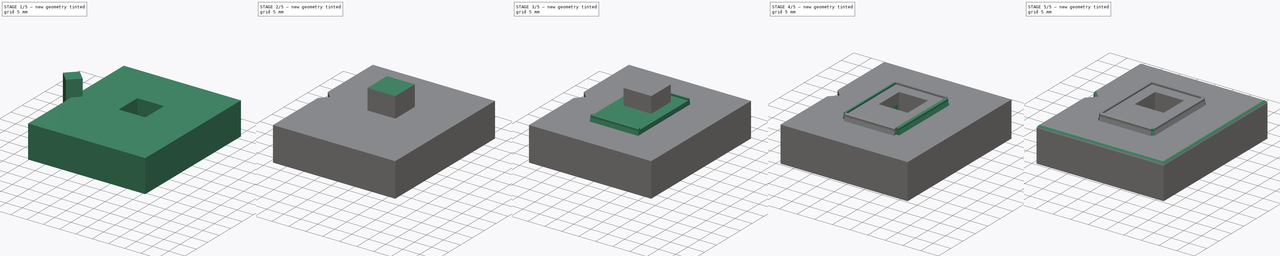
[diagram: build sequence overview — one tinted view per stage of 5, left to right]
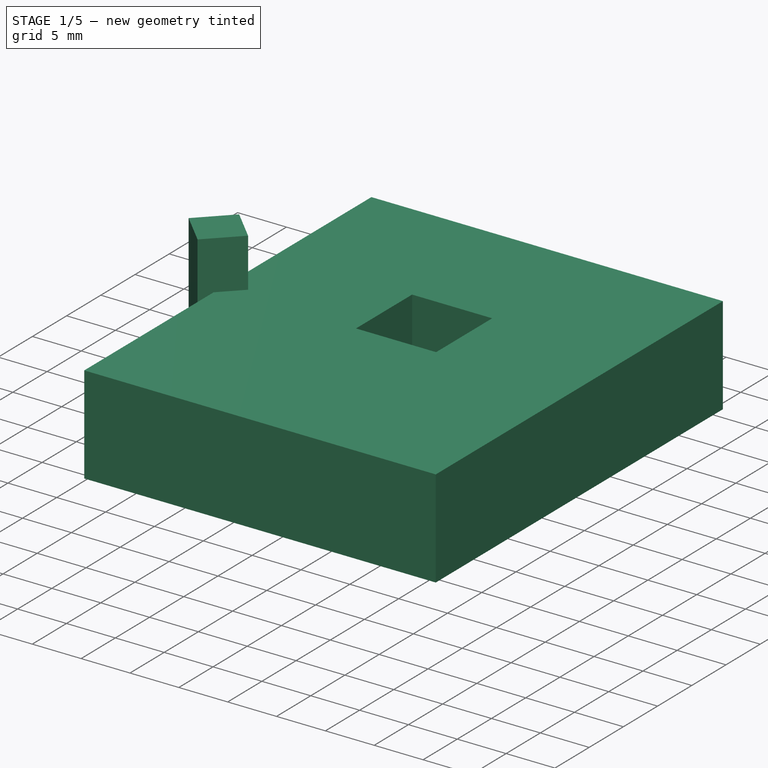
[diagram: stage 1 of 5 — iso view after this stage's code; geometry added in this stage tinted green]
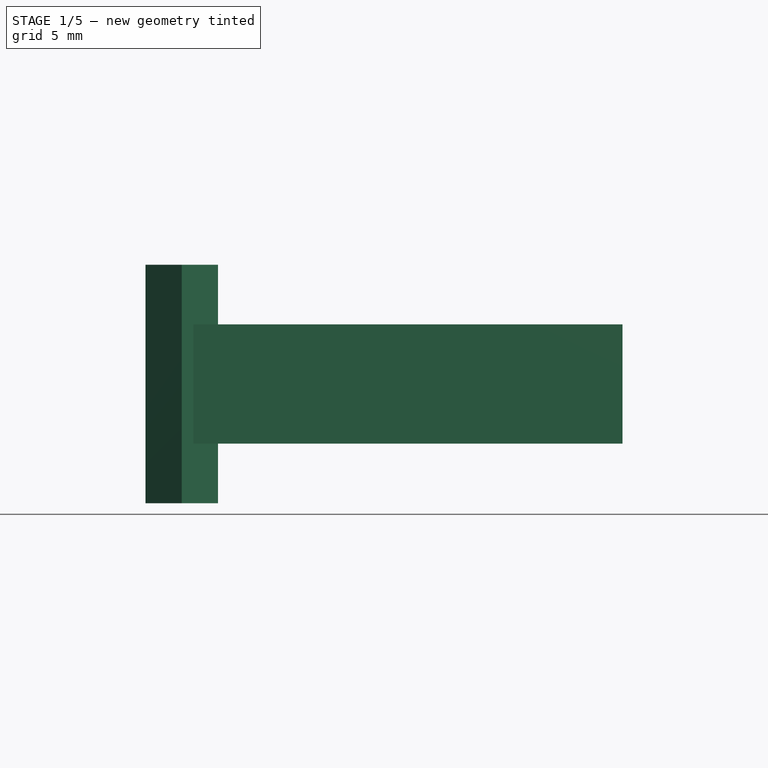
[diagram: stage 1 of 5 — front view after this stage's code; geometry added in this stage tinted green]
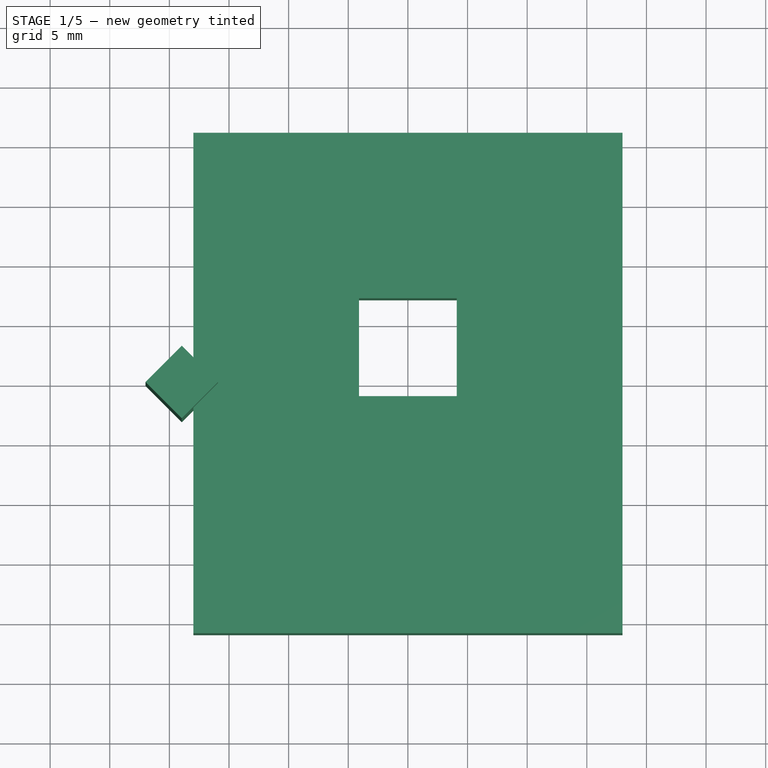
[diagram: stage 1 of 5 — top view after this stage's code; geometry added in this stage tinted green]
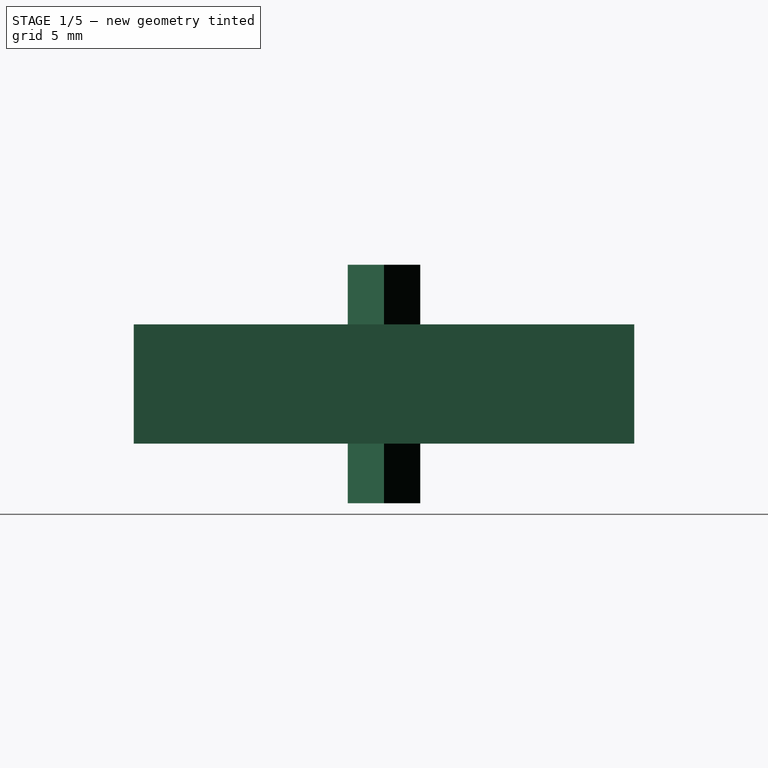
[diagram: stage 1 of 5 — right view after this stage's code; geometry added in this stage tinted green]
FCSTD DOCUMENT  (FreeCAD 1.0R39319 (Git))
Label: Xbox_OG_v1.6_RAM_Pin_Folder_Tool_Base_v3.0
License: All rights reserved
LicenseURL: https://en.wikipedia.org/wiki/All_rights_reserved
objects: Sketcher::SketchObject×7, PartDesign::Body×7, Part::Cut×5, Part::Box×4, PartDesign::Plane×4, PartDesign::Revolution×4, PartDesign::Pad×3, Part::Cylinder×1, Part::Feature×1, Part::MultiFuse×1, Part::Fillet×1
note: 59 computed .brp shape members not serialized (recipe doc carries the construction recipe); baked Part::Feature solids carry a one-line shape summary decoded from their .brp

FEATURE [PartDesign::Body] Body001  label="Length"
  AllowCompound = false
  Group = -> [Sketch001,Pad001]
  Origin = -> Origin001
  Placement = pos=(0,0,0) rot=(0,0,1;1.5708rad)
  Tip = -> Pad001
FEATURE [Sketcher::SketchObject] Sketch002
  ArcFitTolerance = 1e-06
  AttachmentSupport = -> [XZ_Plane002]
  FullyConstrained = true
  MakeInternals = false
  MapMode = 5
  Placement = pos=(0,0,0) rot=(1,0,0;1.5708rad)
  sketch-geometry (5):
    g0: LineSegment StartX=-17.99 StartY=10 StartZ=0 EndX=17.99 EndY=10 EndZ=0
    g1: LineSegment StartX=17.99 StartY=10 StartZ=0 EndX=17.99 EndY=0 EndZ=0
    g2: LineSegment StartX=17.99 StartY=0 StartZ=0 EndX=0 EndY=0 EndZ=0
    g3: LineSegment StartX=-17.99 StartY=10 StartZ=0 EndX=-17.99 EndY=0 EndZ=0
    g4: LineSegment StartX=-17.99 StartY=0 StartZ=0 EndX=0 EndY=0 EndZ=0
  constraints (12):
    c: Coincident(g1,g0)
    c: Parallel(g1,g-2)
    c: Horizontal(g1,g-1)
    c: Coincident(g2,g1)
    c: Coincident(g2,g-1)
    c: DistanceY(g1,g1) = 10
    c: Symmetric(g1,g3,g-2)
    c: Symmetric(g1,g3,g-2)
    c: Symmetric(g2,g4,g-2)
    c: Coincident(g2,g4)
    c: DistanceX(g2,g2) = 17.99
    c: Coincident(g0,g3)
FEATURE [PartDesign::Pad] Pad002
  Direction = (0,-1,2e-16)
  Length = 41.9747
  Length2 = 10
  Midplane = true
  Placement = pos=(0,0,0) rot=(1,0,0;1.5708rad)
  Profile = -> Sketch002
  ReferenceAxis = -> Sketch002 [N_Axis]
  Refine = true
  Suppressed = false
  Type = 0
FEATURE [Part::Box] Box001  label="Notch"
  AttacherType = Attacher::AttachEngine3D
  Height = 20
  Length = 4.3
  Placement = pos=(-22,0,-5) rot=(0,0,-1;0.785398rad)
  Width = 4.3
FEATURE [Part::Box] Box003  label="Center_Hole002"
  AttacherType = Attacher::AttachEngine3D
  Height = 20
  Length = 8.2
  Placement = pos=(-4.1,-1.1,-4) rot=(0,0,1;0rad)
  Width = 8.2
FEATURE [Part::Cut] Cut002
  Base = -> Body002
  Refine = true
  Tool = -> Box003
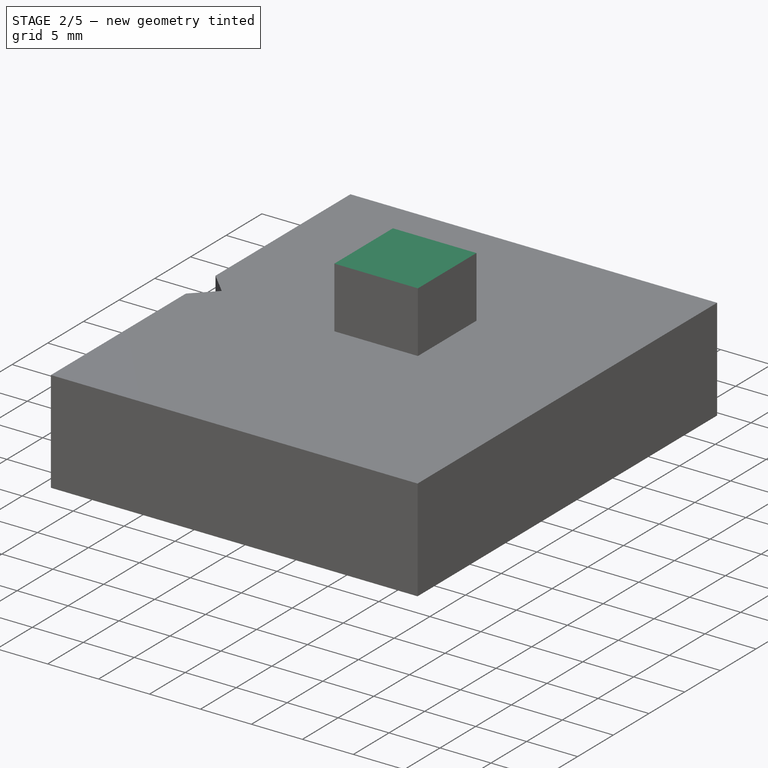
[diagram: stage 2 of 5 — iso view after this stage's code; geometry added in this stage tinted green]
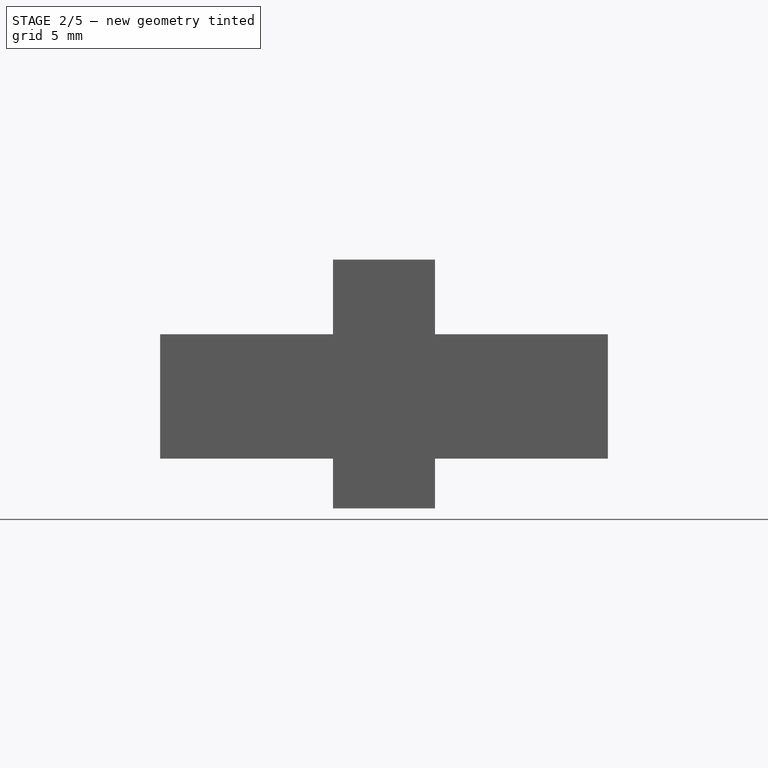
[diagram: stage 2 of 5 — front view after this stage's code; geometry added in this stage tinted green]
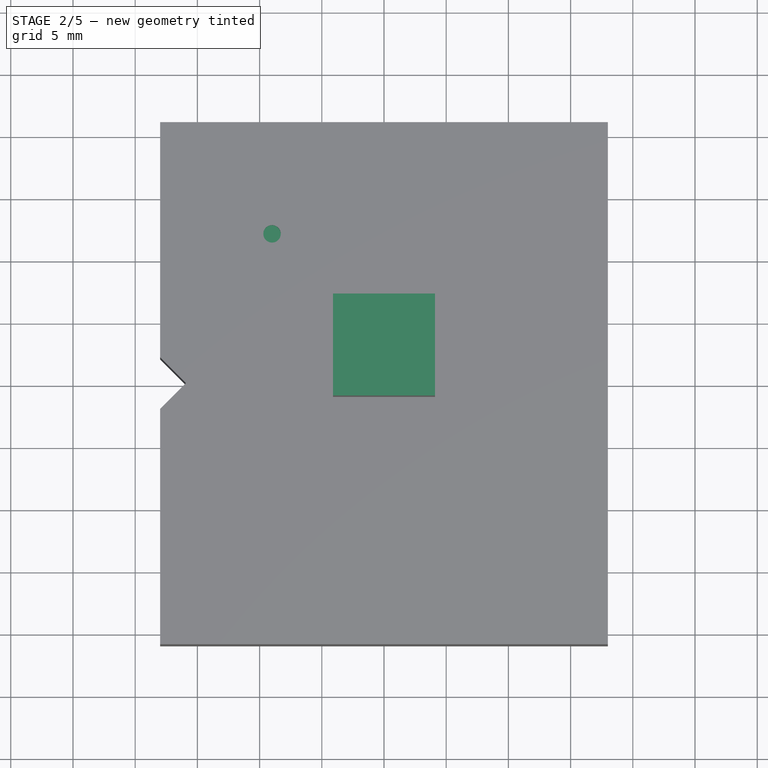
[diagram: stage 2 of 5 — top view after this stage's code; geometry added in this stage tinted green]
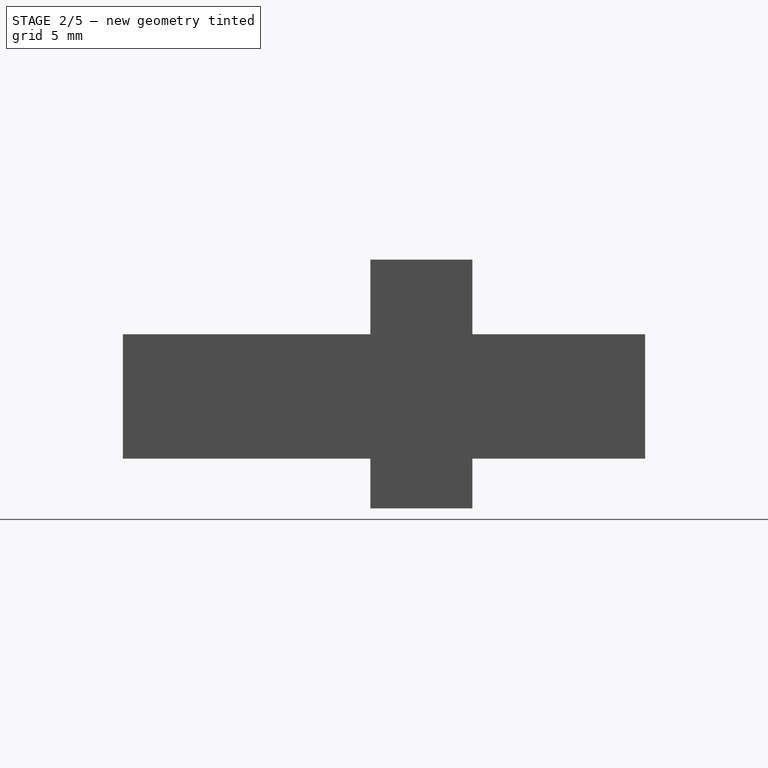
[diagram: stage 2 of 5 — right view after this stage's code; geometry added in this stage tinted green]
FEATURE [PartDesign::Body] Body002  label="Base"
  AllowCompound = false
  Group = -> [Sketch002,Pad002]
  Origin = -> Origin002
  Tip = -> Pad002
FEATURE [Part::Cylinder] Cylinder
  Angle = 360
  AttacherType = Attacher::AttachEngine3D
  FirstAngle = 0
  Height = 2
  Placement = pos=(-9,12,9) rot=(0,0,1;0rad)
  Radius = 0.7
  SecondAngle = 0
FEATURE [Part::Box] Box002  label="Center_Hole001"
  AttacherType = Attacher::AttachEngine3D
  Height = 20
  Length = 8.2
  Placement = pos=(-4.1,-1.1,-4) rot=(0,0,1;0rad)
  Width = 8.2
FEATURE [Part::Cut] Cut003
  Base = -> Cut002
  Refine = true
  Tool = -> Box001
FEATURE [Part::Cut] Cut004
  Base = -> Cut003
  Refine = true
  Tool = -> Cylinder
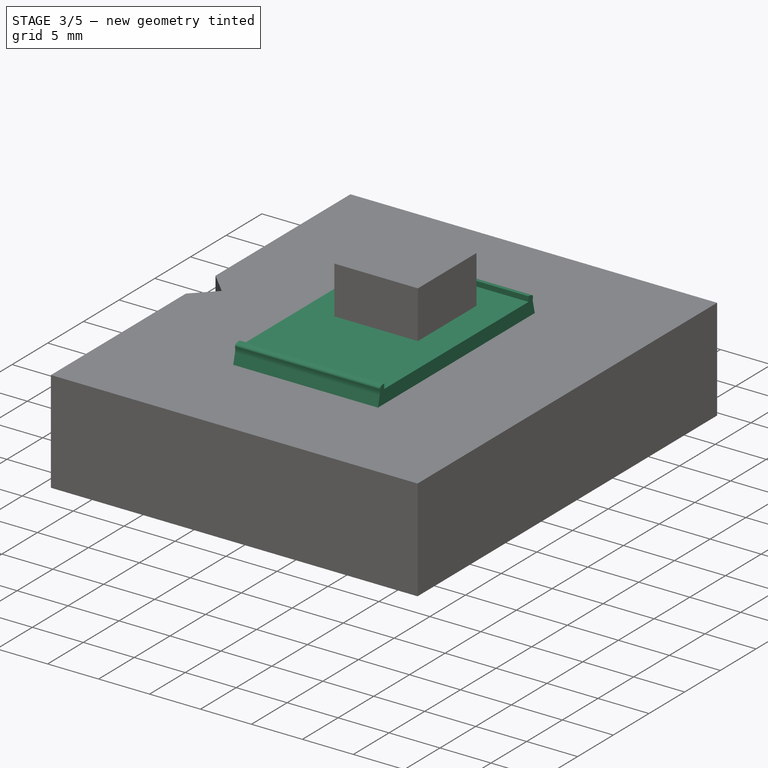
[diagram: stage 3 of 5 — iso view after this stage's code; geometry added in this stage tinted green]
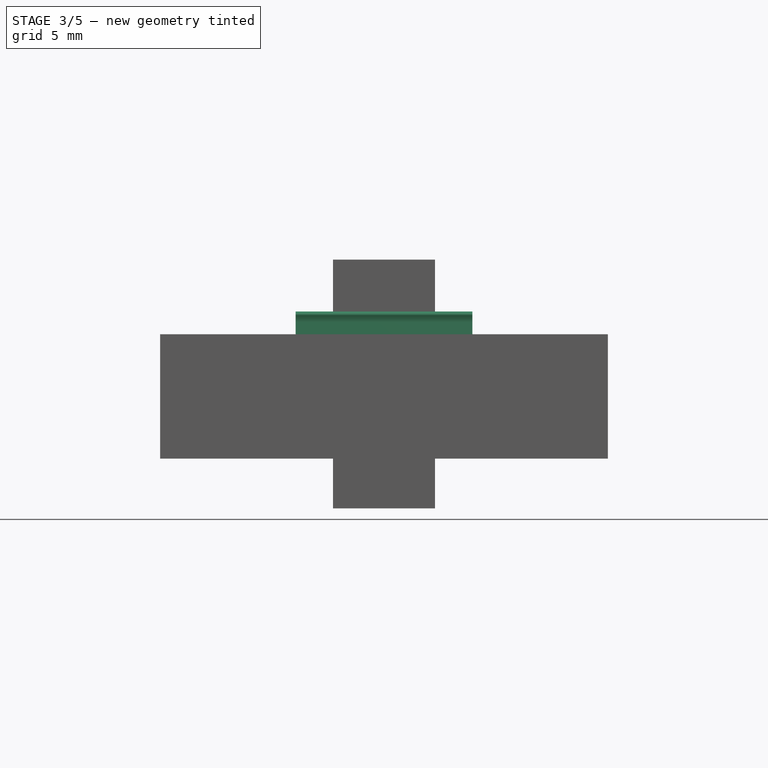
[diagram: stage 3 of 5 — front view after this stage's code; geometry added in this stage tinted green]
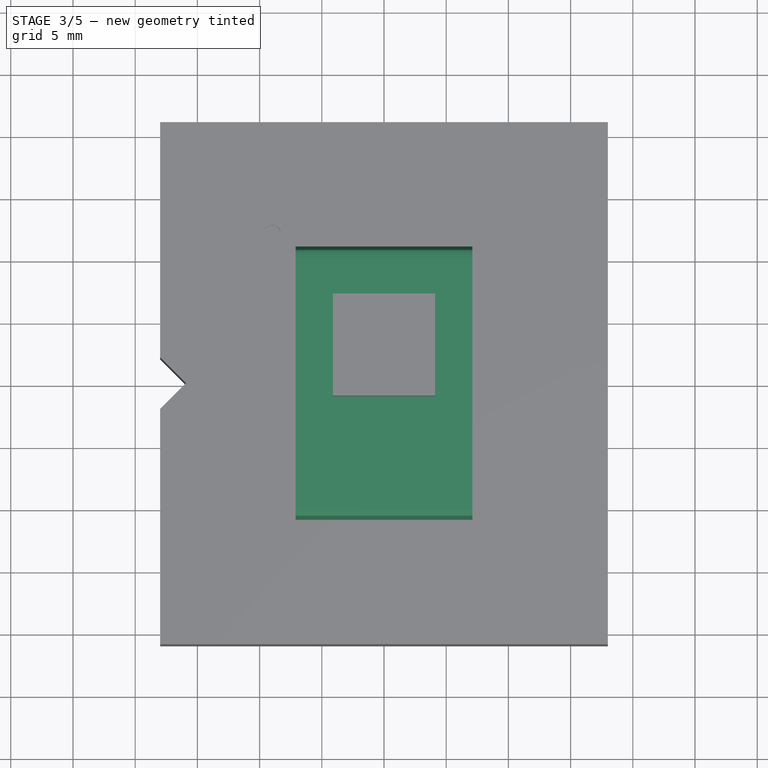
[diagram: stage 3 of 5 — top view after this stage's code; geometry added in this stage tinted green]
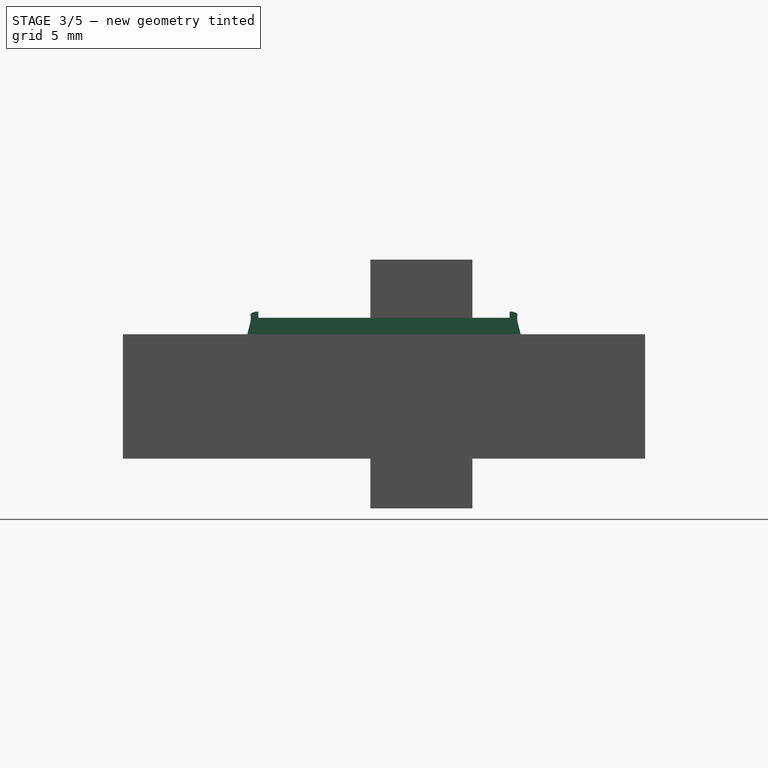
[diagram: stage 3 of 5 — right view after this stage's code; geometry added in this stage tinted green]
FEATURE [PartDesign::Body] Body  label="Width"
  AllowCompound = false
  Group = -> [Sketch,Pad]
  Origin = -> Origin
  Tip = -> Pad
FEATURE [Sketcher::SketchObject] Sketch001
  ArcFitTolerance = 1e-06
  AttachmentSupport = -> [XZ_Plane001]
  FullyConstrained = true
  MakeInternals = false
  MapMode = 5
  Placement = pos=(0,0,0) rot=(1,0,0;1.5708rad)
  sketch-geometry (16):
    g0: LineSegment StartX=0 StartY=11.3231 StartZ=0 EndX=10.1 EndY=11.3231 EndZ=0
    g1: LineSegment StartX=10.1 StartY=11.3231 StartZ=0 EndX=10.1 EndY=11.8231 EndZ=0
    g2: ArcOfCircle CenterX=10.1 CenterY=10.4381 CenterZ=0 NormalX=0 NormalY=0 NormalZ=1 AngleXU=0 Radius=1.385 StartAngle=1.20428 EndAngle=1.5708
    g3: ArcOfCircle CenterX=10.5193 CenterY=11.5304 CenterZ=0 NormalX=0 NormalY=0 NormalZ=1 AngleXU=0 Radius=0.215 StartAngle=-4.4e-15 EndAngle=1.20428
    g4: LineSegment StartX=10.7455 StartY=10.9703 StartZ=0 EndX=10.9873 EndY=10 EndZ=0
    g5: LineSegment StartX=10.9873 StartY=10 StartZ=0 EndX=10.9873 EndY=0 EndZ=0
    g6: LineSegment StartX=10.9873 StartY=0 StartZ=0 EndX=0 EndY=0 EndZ=0
    g7: ArcOfCircle CenterX=11.9678 CenterY=11.2749 CenterZ=0 NormalX=0 NormalY=0 NormalZ=1 AngleXU=0 Radius=1.25971 StartAngle=2.93739 EndAngle=3.3858
    g8: LineSegment StartX=0 StartY=11.3231 StartZ=0 EndX=-10.1 EndY=11.3231 EndZ=0
    g9: LineSegment StartX=-10.1 StartY=11.3231 StartZ=0 EndX=-10.1 EndY=11.8231 EndZ=0
    g10: ArcOfCircle CenterX=-10.1 CenterY=10.4381 CenterZ=0 NormalX=0 NormalY=0 NormalZ=1 AngleXU=0 Radius=1.385 StartAngle=1.5708 EndAngle=1.93732
    g11: ArcOfCircle CenterX=-10.5193 CenterY=11.5304 CenterZ=0 NormalX=0 NormalY=0 NormalZ=1 AngleXU=0 Radius=0.215 StartAngle=1.93732 EndAngle=3.14159
    g12: LineSegment StartX=-10.7455 StartY=10.9703 StartZ=0 EndX=-10.9873 EndY=10 EndZ=0
    g13: LineSegment StartX=-10.9873 StartY=10 StartZ=0 EndX=-10.9873 EndY=0 EndZ=0
    g14: LineSegment StartX=-10.9873 StartY=0 StartZ=0 EndX=0 EndY=0 EndZ=0
    g15: ArcOfCircle CenterX=-11.9678 CenterY=11.2749 CenterZ=0 NormalX=0 NormalY=0 NormalZ=1 AngleXU=0 Radius=1.25971 StartAngle=6.03897 EndAngle=6.48738
  constraints (44):
    c: Horizontal(g0)
    c: DistanceX(g0,g0) = 10.1
    c: DistanceY(g0,g1) = 0.5
    c: Coincident(g1,g0)
    c: Perpendicular(g0,g1)
    c: Coincident(g1,g2)
    c: PointOnObject(g2,g1)
    c: Radius(g2) = 1.385
    c: Angle(g2) = 0.366519
    c: Radius(g3) = 0.215
    c: Angle(g3) = 1.20428
    c: Tangent(g2,g3) = -1.5708
    c: Distance(g4) = 1
    c: Vertical(g-1,g0)
    c: Parallel(g5,g-2)
    c: Horizontal(g5,g-1)
    c: Coincident(g6,g5)
    c: Coincident(g6,g-1)
    c: DistanceY(g5,g5) = 10
    c: Angle(g4) = -1.32658
    c: Tangent(g4,g7) = -1.5708
    c: Coincident(g3,g7)
    c: Coincident(g4,g5)
    c: Radius(g7) = 1.25971
    c: Symmetric(g0,g8,g-2)
    c: Symmetric(g1,g9,g-2)
    c: Symmetric(g1,g9,g-2)
    c: Equal(g2,g10)
    c: Symmetric(g2,g10,g-2)
    c: Symmetric(g2,g10,g-2)
    c: Equal(g3,g11)
    c: Symmetric(g3,g11,g-2)
    c: Symmetric(g3,g11,g-2)
    c: Symmetric(g4,g12,g-2)
    c: Symmetric(g4,g12,g-2)
    c: Symmetric(g5,g13,g-2)
    c: Symmetric(g5,g13,g-2)
    c: Symmetric(g6,g14,g-2)
    c: Equal(g7,g15)
    c: Symmetric(g7,g15,g-2)
    c: Symmetric(g7,g15,g-2)
    c: Coincident(g8,g0)
    c: Coincident(g14,g6)
    c: Angle(g7) = 0.44841
FEATURE [PartDesign::Pad] Pad001
  Direction = (0,-1,2e-16)
  Length = 14.2054
  Length2 = 10
  Midplane = true
  Placement = pos=(0,0,0) rot=(1,0,0;1.5708rad)
  Profile = -> Sketch001
  ReferenceAxis = -> Sketch001 [N_Axis]
  Refine = true
  Suppressed = false
  Type = 0
FEATURE [PartDesign::Body] Body006  label="Corner_004"
  AllowCompound = false
  Group = -> [DatumPlane003,Sketch006,Revolution003]
  Origin = -> Origin006
  Placement = pos=(-7.1,-10.1,0) rot=(0,0,1;1.5708rad)
  Tip = -> Revolution003
FEATURE [Part::Box] Box  label="Center_Hole"
  AttacherType = Attacher::AttachEngine3D
  Height = 20
  Length = 8.2
  Placement = pos=(-4.1,-1.1,-4) rot=(0,0,1;0rad)
  Width = 8.2
FEATURE [Part::Cut] Cut001
  Base = -> Body001
  Refine = true
  Tool = -> Box002
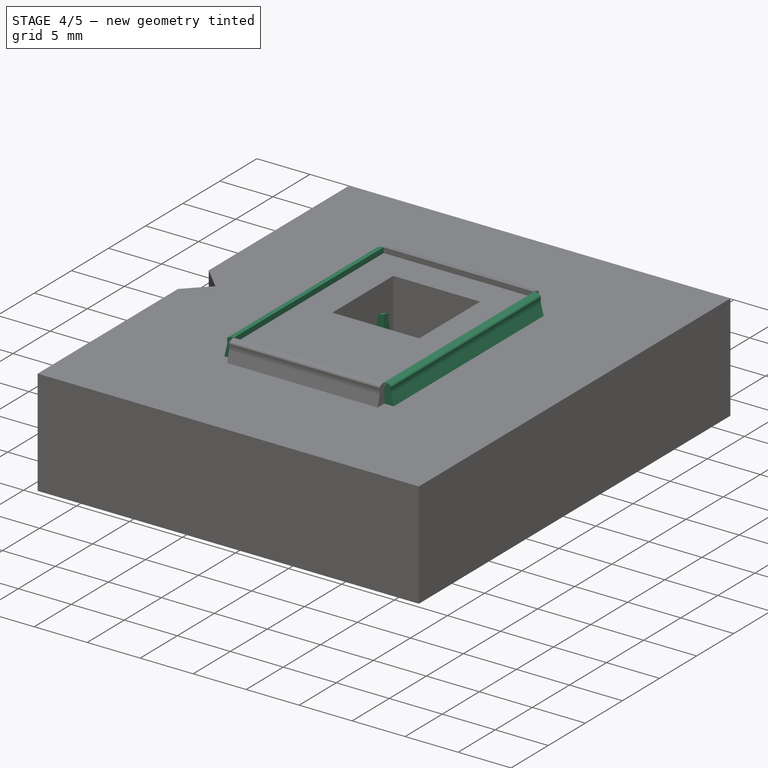
[diagram: stage 4 of 5 — iso view after this stage's code; geometry added in this stage tinted green]
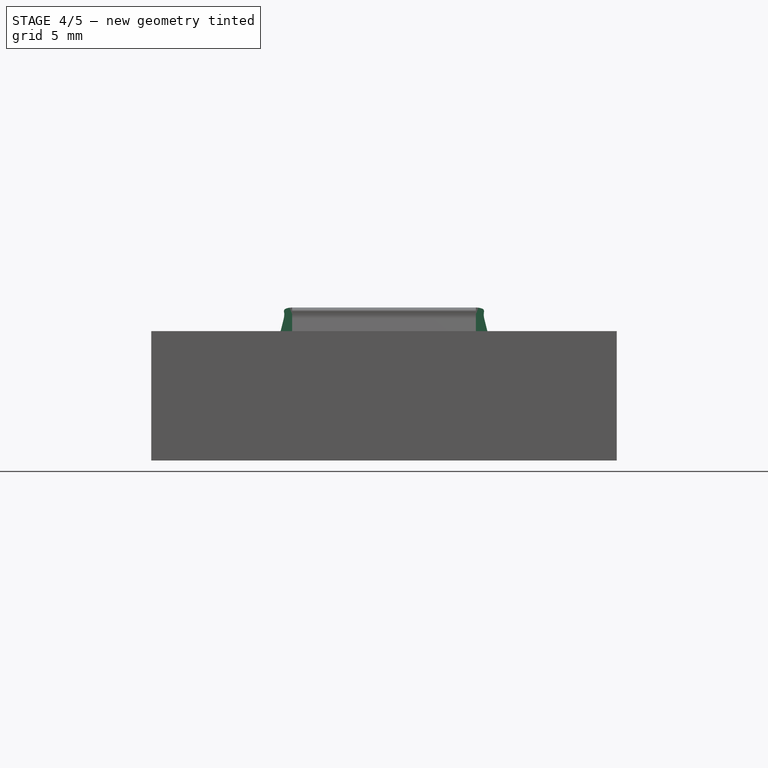
[diagram: stage 4 of 5 — front view after this stage's code; geometry added in this stage tinted green]
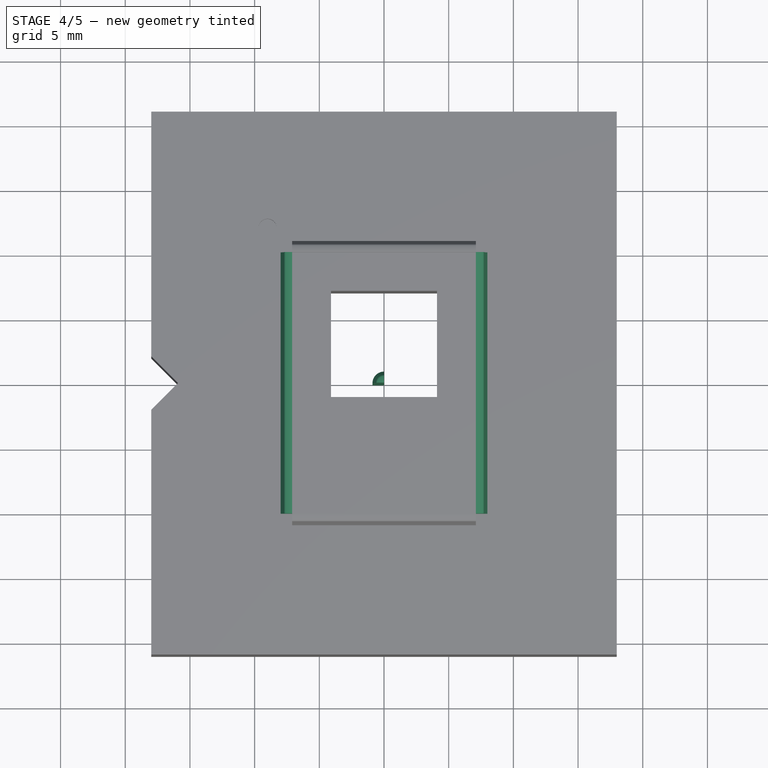
[diagram: stage 4 of 5 — top view after this stage's code; geometry added in this stage tinted green]
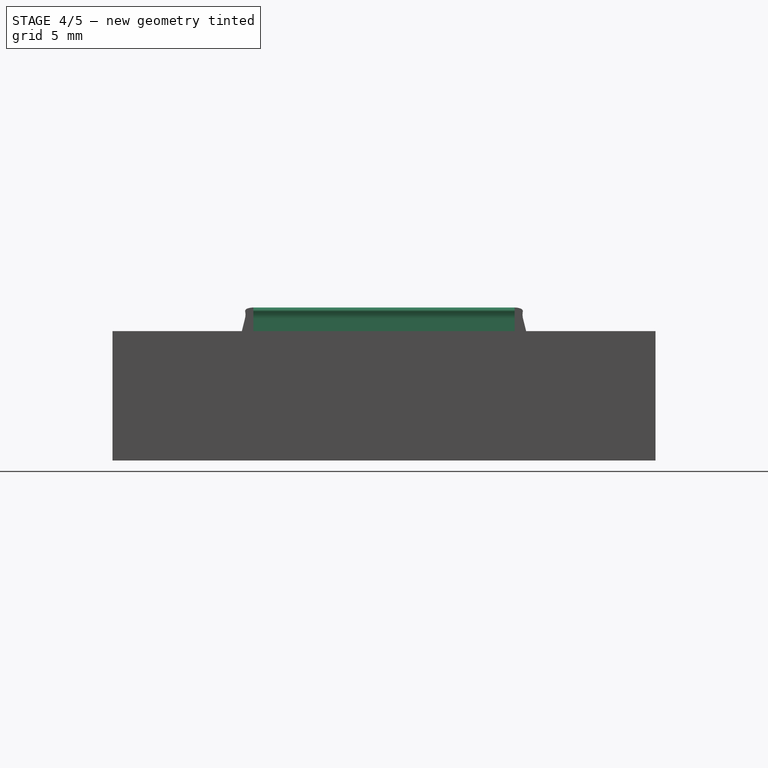
[diagram: stage 4 of 5 — right view after this stage's code; geometry added in this stage tinted green]
FEATURE [Sketcher::SketchObject] Sketch
  ArcFitTolerance = 1e-06
  AttachmentSupport = -> [XZ_Plane]
  FullyConstrained = true
  MakeInternals = false
  MapMode = 5
  Placement = pos=(0,0,0) rot=(1,0,0;1.5708rad)
  sketch-geometry (16):
    g0: LineSegment StartX=0 StartY=11.3231 StartZ=0 EndX=7.1027 EndY=11.3231 EndZ=0
    g1: LineSegment StartX=7.1027 StartY=11.3231 StartZ=0 EndX=7.1027 EndY=11.8231 EndZ=0
    g2: ArcOfCircle CenterX=7.1027 CenterY=10.4381 CenterZ=0 NormalX=0 NormalY=0 NormalZ=1 AngleXU=0 Radius=1.385 StartAngle=1.20428 EndAngle=1.5708
    g3: ArcOfCircle CenterX=7.52199 CenterY=11.5304 CenterZ=0 NormalX=0 NormalY=0 NormalZ=1 AngleXU=0 Radius=0.215 StartAngle=3.1645e-12 EndAngle=1.20428
    g4: LineSegment StartX=7.7482 StartY=10.9703 StartZ=0 EndX=7.98999 EndY=10 EndZ=0
    g5: LineSegment StartX=7.98999 StartY=10 StartZ=0 EndX=7.98999 EndY=0 EndZ=0
    g6: LineSegment StartX=7.98999 StartY=0 StartZ=0 EndX=0 EndY=0 EndZ=0
    g7: ArcOfCircle CenterX=8.97053 CenterY=11.2749 CenterZ=0 NormalX=0 NormalY=0 NormalZ=1 AngleXU=0 Radius=1.25971 StartAngle=2.93739 EndAngle=3.3858
    g8: LineSegment StartX=0 StartY=11.3231 StartZ=0 EndX=-7.1027 EndY=11.3231 EndZ=0
    g9: LineSegment StartX=-7.1027 StartY=11.3231 StartZ=0 EndX=-7.1027 EndY=11.8231 EndZ=0
    g10: ArcOfCircle CenterX=-7.1027 CenterY=10.4381 CenterZ=0 NormalX=0 NormalY=0 NormalZ=1 AngleXU=0 Radius=1.385 StartAngle=1.5708 EndAngle=1.93732
    g11: ArcOfCircle CenterX=-7.52199 CenterY=11.5304 CenterZ=0 NormalX=0 NormalY=0 NormalZ=1 AngleXU=0 Radius=0.215 StartAngle=1.93732 EndAngle=3.14159
    g12: LineSegment StartX=-7.7482 StartY=10.9703 StartZ=0 EndX=-7.98999 EndY=10 EndZ=0
    g13: LineSegment StartX=-7.98999 StartY=10 StartZ=0 EndX=-7.98999 EndY=0 EndZ=0
    g14: LineSegment StartX=-7.98999 StartY=0 StartZ=0 EndX=0 EndY=0 EndZ=0
    g15: ArcOfCircle CenterX=-8.97053 CenterY=11.2749 CenterZ=0 NormalX=0 NormalY=0 NormalZ=1 AngleXU=0 Radius=1.25971 StartAngle=6.03897 EndAngle=6.48738
  constraints (44):
    c: Horizontal(g0)
    c: DistanceY(g0,g1) = 0.5
    c: Coincident(g1,g0)
    c: Perpendicular(g0,g1)
    c: Coincident(g1,g2)
    c: PointOnObject(g2,g1)
    c: Radius(g2) = 1.385
    c: Angle(g2) = 0.366519
    c: Radius(g3) = 0.215
    c: Angle(g3) = 1.20428
    c: Tangent(g2,g3) = -1.5708
    c: Distance(g4) = 1
    c: Vertical(g-1,g0)
    c: Parallel(g5,g-2)
    c: Horizontal(g5,g-1)
    c: Coincident(g6,g5)
    c: Coincident(g6,g-1)
    c: DistanceY(g5,g5) = 10
    c: Angle(g4) = -1.32658
    c: Angle(g7) = 0.44841
    c: Radius(g7) = 1.25971
    c: Tangent(g7,g4) = -1.5708
    c: Coincident(g3,g7)
    c: Coincident(g5,g4)
    c: DistanceX(g0,g0) = 7.1027
    c: Symmetric(g0,g8,g-2)
    c: Symmetric(g1,g9,g-2)
    c: Symmetric(g1,g9,g-2)
    c: Equal(g2,g10)
    c: Symmetric(g2,g10,g-2)
    c: Symmetric(g2,g10,g-2)
    c: Equal(g3,g11)
    c: Symmetric(g3,g11,g-2)
    c: Symmetric(g3,g11,g-2)
    c: Symmetric(g4,g12,g-2)
    c: Symmetric(g4,g12,g-2)
    c: Symmetric(g5,g13,g-2)
    c: Symmetric(g5,g13,g-2)
    c: Symmetric(g6,g14,g-2)
    c: Equal(g7,g15)
    c: Symmetric(g7,g15,g-2)
    c: Symmetric(g7,g15,g-2)
    c: Coincident(g8,g0)
    c: Coincident(g14,g6)
FEATURE [PartDesign::Pad] Pad
  Direction = (0,-1,2e-16)
  Length = 20.2
  Length2 = 10
  Midplane = true
  Placement = pos=(0,0,0) rot=(1,0,0;1.5708rad)
  Profile = -> Sketch
  ReferenceAxis = -> Sketch [N_Axis]
  Refine = true
  Suppressed = false
  Type = 0
FEATURE [PartDesign::Body] Body004  label="Corner_002"
  AllowCompound = false
  Group = -> [DatumPlane001,Sketch004,Revolution001]
  Origin = -> Origin004
  Placement = pos=(7.1,10.1,0) rot=(0,0,-1;1.5708rad)
  Tip = -> Revolution001
FEATURE [PartDesign::Plane] DatumPlane002
  AttachmentOffset = pos=(0,0,0) rot=(0,1,0;0.785398rad)
  AttachmentSupport = -> [YZ_Plane005]
  Length = 82.6027
  MapMode = 5
  Placement = pos=(0,0,0) rot=(0.281085,0.678598,0.678598;2.59356rad)
  ResizeMode = 0
  Width = 61.8921
FEATURE [Sketcher::SketchObject] Sketch005
  ArcFitTolerance = 1e-06
  AttachmentSupport = -> [DatumPlane002]
  FullyConstrained = true
  MakeInternals = false
  MapMode = 5
  Placement = pos=(0,0,0) rot=(0.281085,0.678598,0.678598;2.59356rad)
  sketch-geometry (8):
    g0: LineSegment StartX=0 StartY=11.3238 StartZ=0 EndX=0.000573237 EndY=11.8238 EndZ=0
    g1: ArcOfCircle CenterX=-0.00101463 CenterY=10.4388 CenterZ=0 NormalX=0 NormalY=0 NormalZ=1 AngleXU=0 Radius=1.385 StartAngle=1.20313 EndAngle=1.56965
    g2: ArcOfCircle CenterX=0.419528 CenterY=11.5306 CenterZ=0 NormalX=0 NormalY=0 NormalZ=1 AngleXU=0 Radius=0.215 StartAngle=6.28204 EndAngle=7.48632
    g3: LineSegment StartX=0.645733 StartY=10.9703 StartZ=0 EndX=0.887524 EndY=10 EndZ=0
    g4: LineSegment StartX=0.887524 StartY=10 StartZ=0 EndX=0.887524 EndY=0 EndZ=0
    g5: LineSegment StartX=0.887524 StartY=0 StartZ=0 EndX=0 EndY=0 EndZ=0
    g6: ArcOfCircle CenterX=1.86807 CenterY=11.2749 CenterZ=0 NormalX=0 NormalY=0 NormalZ=1 AngleXU=0 Radius=1.25971 StartAngle=2.93739 EndAngle=3.3858
    g7: LineSegment StartX=0 StartY=11.3238 StartZ=0 EndX=0 EndY=0 EndZ=0
  constraints (24):
    c: DistanceY(g0,g0) = 0.5
    c: Coincident(g0,g1)
    c: PointOnObject(g1,g0)
    c: Radius(g1) = 1.385
    c: Angle(g1) = 0.366519
    c: Radius(g2) = 0.215
    c: Angle(g2) = 1.20428
    c: Tangent(g1,g2) = -1.5708
    c: Distance(g3) = 1
    c: Vertical(g-1,g7)
    c: Parallel(g4,g-2)
    c: Horizontal(g4,g-1)
    c: Coincident(g5,g4)
    c: Coincident(g5,g-1)
    c: DistanceY(g4,g4) = 10
    c: Angle(g3) = -1.32658
    c: Tangent(g3,g6) = -1.5708
    c: Coincident(g2,g6)
    c: Coincident(g3,g4)
    c: Radius(g6) = 1.25971
    c: Angle(g6) = 0.44841
    c: Coincident(g7,g5)
    c: Coincident(g0,g7)
    c: DistanceY(g7,g7) = 11.3238
FEATURE [PartDesign::Revolution] Revolution002
  Angle = 90
  Angle2 = 60
  Axis = (0,0,1)
  Base = (0,0,0)
  Midplane = true
  Placement = pos=(0,0,0) rot=(0.281085,0.678598,0.678598;2.59356rad)
  Profile = -> Sketch005
  ReferenceAxis = -> Sketch005 [V_Axis]
  Refine = true
  Reversed = true
  Suppressed = false
  Type = 0
FEATURE [PartDesign::Body] Body005  label="Corner_003"
  AllowCompound = false
  Group = -> [DatumPlane002,Sketch005,Revolution002]
  Origin = -> Origin005
  Placement = pos=(7.1,-10.1,0) rot=(0,0,1;3.14159rad)
  Tip = -> Revolution002
FEATURE [PartDesign::Plane] DatumPlane003
  AttachmentOffset = pos=(0,0,0) rot=(0,1,0;0.785398rad)
  AttachmentSupport = -> [YZ_Plane006]
  Length = 82.6027
  MapMode = 5
  Placement = pos=(0,0,0) rot=(0.281085,0.678598,0.678598;2.59356rad)
  ResizeMode = 0
  Width = 61.8921
FEATURE [Sketcher::SketchObject] Sketch006
  ArcFitTolerance = 1e-06
  AttachmentSupport = -> [DatumPlane003]
  FullyConstrained = true
  MakeInternals = false
  MapMode = 5
  Placement = pos=(0,0,0) rot=(0.281085,0.678598,0.678598;2.59356rad)
  sketch-geometry (8):
    g0: LineSegment StartX=0 StartY=11.3238 StartZ=0 EndX=0.000573237 EndY=11.8238 EndZ=0
    g1: ArcOfCircle CenterX=-0.00101463 CenterY=10.4388 CenterZ=0 NormalX=0 NormalY=0 NormalZ=1 AngleXU=0 Radius=1.385 StartAngle=1.20313 EndAngle=1.56965
    g2: ArcOfCircle CenterX=0.419528 CenterY=11.5306 CenterZ=0 NormalX=0 NormalY=0 NormalZ=1 AngleXU=0 Radius=0.215 StartAngle=6.28204 EndAngle=7.48632
    g3: LineSegment StartX=0.645733 StartY=10.9703 StartZ=0 EndX=0.887524 EndY=10 EndZ=0
    g4: LineSegment StartX=0.887524 StartY=10 StartZ=0 EndX=0.887524 EndY=0 EndZ=0
    g5: LineSegment StartX=0.887524 StartY=0 StartZ=0 EndX=0 EndY=0 EndZ=0
    g6: ArcOfCircle CenterX=1.86807 CenterY=11.2749 CenterZ=0 NormalX=0 NormalY=0 NormalZ=1 AngleXU=0 Radius=1.25971 StartAngle=2.93739 EndAngle=3.3858
    g7: LineSegment StartX=0 StartY=11.3238 StartZ=0 EndX=0 EndY=0 EndZ=0
  constraints (24):
    c: DistanceY(g0,g0) = 0.5
    c: Coincident(g0,g1)
    c: PointOnObject(g1,g0)
    c: Radius(g1) = 1.385
    c: Angle(g1) = 0.366519
    c: Radius(g2) = 0.215
    c: Angle(g2) = 1.20428
    c: Tangent(g1,g2) = -1.5708
    c: Distance(g3) = 1
    c: Vertical(g-1,g7)
    c: Parallel(g4,g-2)
    c: Horizontal(g4,g-1)
    c: Coincident(g5,g4)
    c: Coincident(g5,g-1)
    c: DistanceY(g4,g4) = 10
    c: Angle(g3) = -1.32658
    c: Tangent(g3,g6) = -1.5708
    c: Coincident(g2,g6)
    c: Coincident(g3,g4)
    c: Radius(g6) = 1.25971
    c: Angle(g6) = 0.44841
    c: Coincident(g7,g5)
    c: Coincident(g0,g7)
    c: DistanceY(g7,g7) = 11.3238
FEATURE [PartDesign::Revolution] Revolution003
  Angle = 90
  Angle2 = 60
  Axis = (0,0,1)
  Base = (0,0,0)
  Midplane = true
  Placement = pos=(0,0,0) rot=(0.281085,0.678598,0.678598;2.59356rad)
  Profile = -> Sketch006
  ReferenceAxis = -> Sketch006 [V_Axis]
  Refine = true
  Reversed = true
  Suppressed = false
  Type = 0
FEATURE [Part::Cut] Cut
  Base = -> Body
  Refine = true
  Tool = -> Box
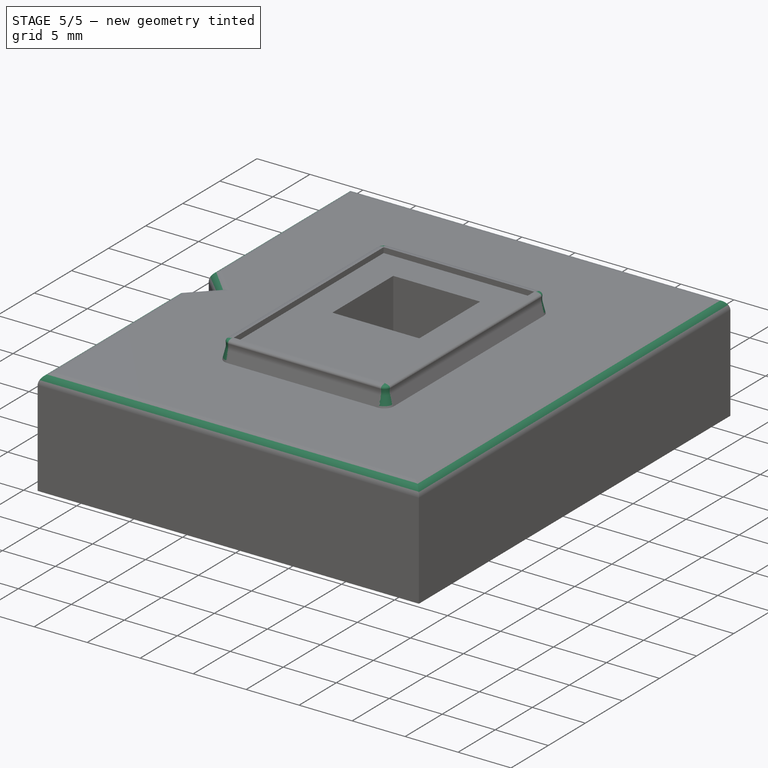
[diagram: stage 5 of 5 — iso view after this stage's code; geometry added in this stage tinted green]
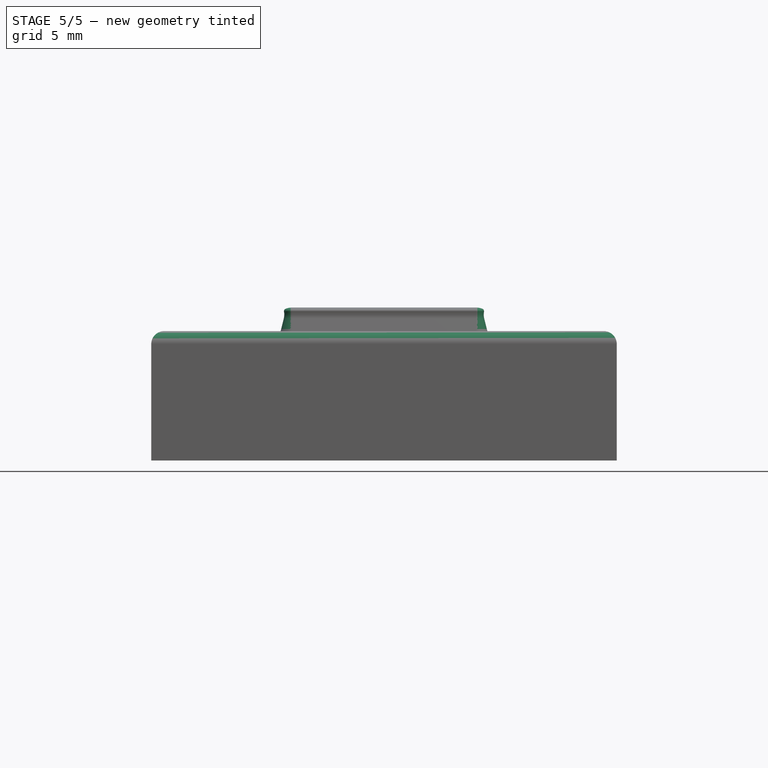
[diagram: stage 5 of 5 — front view after this stage's code; geometry added in this stage tinted green]
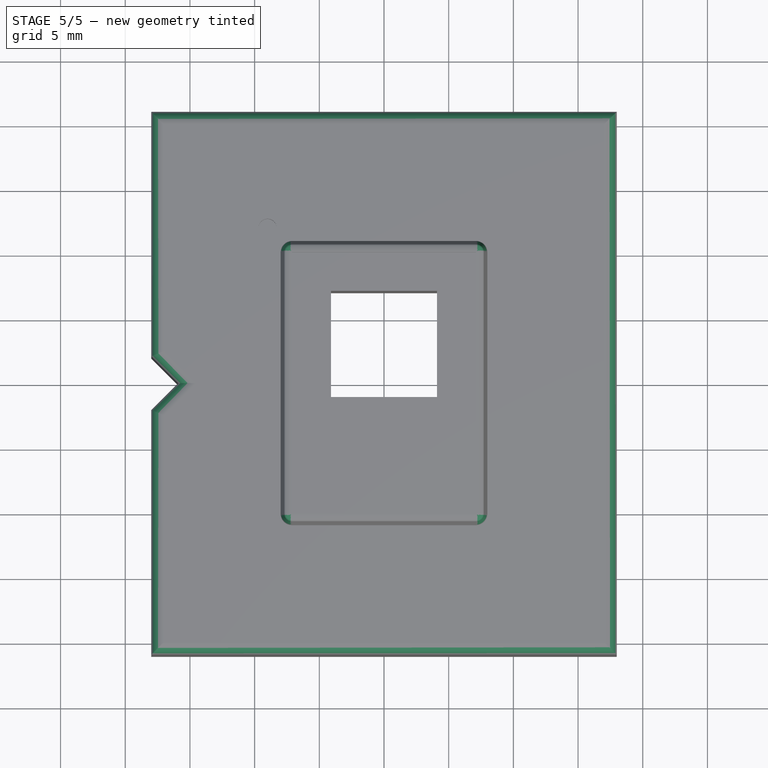
[diagram: stage 5 of 5 — top view after this stage's code; geometry added in this stage tinted green]
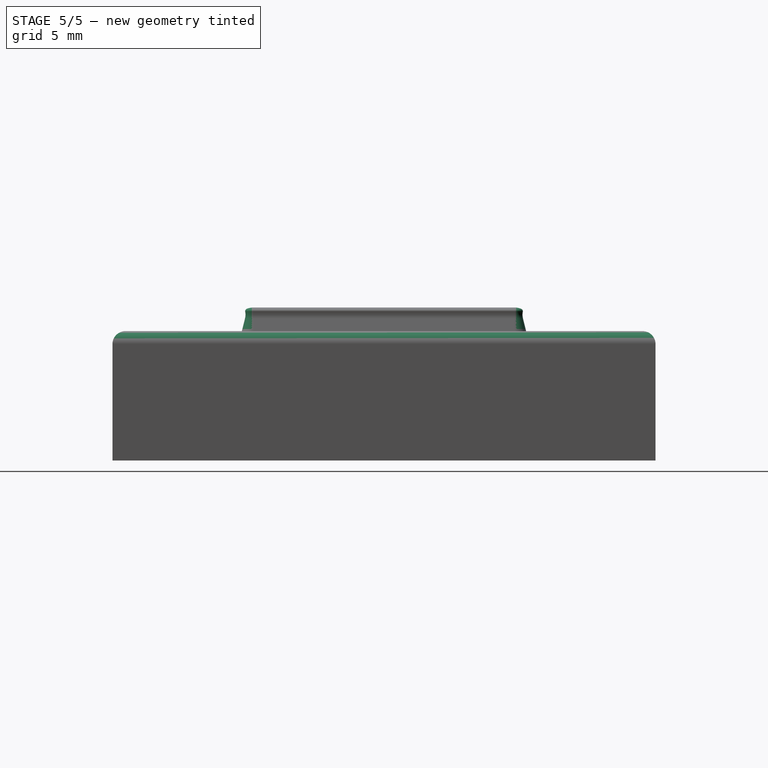
[diagram: stage 5 of 5 — right view after this stage's code; geometry added in this stage tinted green]
FEATURE [PartDesign::Plane] DatumPlane
  AttachmentOffset = pos=(0,0,0) rot=(0,1,0;0.785398rad)
  AttachmentSupport = -> [YZ_Plane003]
  Length = 82.6027
  MapMode = 5
  Placement = pos=(0,0,0) rot=(0.281085,0.678598,0.678598;2.59356rad)
  ResizeMode = 0
  Width = 61.8921
FEATURE [Sketcher::SketchObject] Sketch003
  ArcFitTolerance = 1e-06
  AttachmentSupport = -> [DatumPlane]
  FullyConstrained = true
  MakeInternals = false
  MapMode = 5
  Placement = pos=(0,0,0) rot=(0.281085,0.678598,0.678598;2.59356rad)
  sketch-geometry (8):
    g0: LineSegment StartX=0 StartY=11.3238 StartZ=0 EndX=0.000573237 EndY=11.8238 EndZ=0
    g1: ArcOfCircle CenterX=-0.00101463 CenterY=10.4388 CenterZ=0 NormalX=0 NormalY=0 NormalZ=1 AngleXU=0 Radius=1.385 StartAngle=1.20313 EndAngle=1.56965
    g2: ArcOfCircle CenterX=0.419528 CenterY=11.5306 CenterZ=0 NormalX=0 NormalY=0 NormalZ=1 AngleXU=0 Radius=0.215 StartAngle=6.28204 EndAngle=7.48632
    g3: LineSegment StartX=0.645733 StartY=10.9703 StartZ=0 EndX=0.887524 EndY=10 EndZ=0
    g4: LineSegment StartX=0.887524 StartY=10 StartZ=0 EndX=0.887524 EndY=0 EndZ=0
    g5: LineSegment StartX=0.887524 StartY=0 StartZ=0 EndX=0 EndY=0 EndZ=0
    g6: ArcOfCircle CenterX=1.86807 CenterY=11.2749 CenterZ=0 NormalX=0 NormalY=0 NormalZ=1 AngleXU=0 Radius=1.25971 StartAngle=2.93739 EndAngle=3.3858
    g7: LineSegment StartX=0 StartY=11.3238 StartZ=0 EndX=0 EndY=0 EndZ=0
  constraints (24):
    c: DistanceY(g0,g0) = 0.5
    c: Coincident(g0,g1)
    c: PointOnObject(g1,g0)
    c: Radius(g1) = 1.385
    c: Angle(g1) = 0.366519
    c: Radius(g2) = 0.215
    c: Angle(g2) = 1.20428
    c: Tangent(g1,g2) = -1.5708
    c: Distance(g3) = 1
    c: Vertical(g-1,g7)
    c: Parallel(g4,g-2)
    c: Horizontal(g4,g-1)
    c: Coincident(g5,g4)
    c: Coincident(g5,g-1)
    c: DistanceY(g4,g4) = 10
    c: Angle(g3) = -1.32658
    c: Tangent(g3,g6) = -1.5708
    c: Coincident(g2,g6)
    c: Coincident(g3,g4)
    c: Radius(g6) = 1.25971
    c: Angle(g6) = 0.44841
    c: Coincident(g7,g5)
    c: Coincident(g0,g7)
    c: DistanceY(g7,g7) = 11.3238
FEATURE [Part::Feature] Part__Feature  label="PQFP-100_14x20mm_P0.65mm - K4D263238F v1"
  Placement = pos=(0,0,9.635) rot=(0,0,1;0rad)
  shape: bbox 17.21 x 23.21 x 1.211 mm, 1544 faces (baked)
FEATURE [PartDesign::Revolution] Revolution
  Angle = 90
  Angle2 = 60
  Axis = (0,0,1)
  Base = (0,0,0)
  Midplane = true
  Placement = pos=(0,0,0) rot=(0.281085,0.678598,0.678598;2.59356rad)
  Profile = -> Sketch003
  ReferenceAxis = -> Sketch003 [V_Axis]
  Refine = true
  Reversed = true
  Suppressed = false
  Type = 0
FEATURE [PartDesign::Body] Body003  label="Corner_001"
  AllowCompound = false
  Group = -> [DatumPlane,Sketch003,Revolution]
  Origin = -> Origin003
  Placement = pos=(-7.1,10.1,0) rot=(0,0,1;0rad)
  Tip = -> Revolution
FEATURE [PartDesign::Plane] DatumPlane001
  AttachmentOffset = pos=(0,0,0) rot=(0,1,0;0.785398rad)
  AttachmentSupport = -> [YZ_Plane004]
  Length = 82.6027
  MapMode = 5
  Placement = pos=(0,0,0) rot=(0.281085,0.678598,0.678598;2.59356rad)
  ResizeMode = 0
  Width = 61.8921
FEATURE [Sketcher::SketchObject] Sketch004
  ArcFitTolerance = 1e-06
  AttachmentSupport = -> [DatumPlane001]
  FullyConstrained = true
  MakeInternals = false
  MapMode = 5
  Placement = pos=(0,0,0) rot=(0.281085,0.678598,0.678598;2.59356rad)
  sketch-geometry (8):
    g0: LineSegment StartX=0 StartY=11.3238 StartZ=0 EndX=0.000573237 EndY=11.8238 EndZ=0
    g1: ArcOfCircle CenterX=-0.00101463 CenterY=10.4388 CenterZ=0 NormalX=0 NormalY=0 NormalZ=1 AngleXU=0 Radius=1.385 StartAngle=1.20313 EndAngle=1.56965
    g2: ArcOfCircle CenterX=0.419528 CenterY=11.5306 CenterZ=0 NormalX=0 NormalY=0 NormalZ=1 AngleXU=0 Radius=0.215 StartAngle=6.28204 EndAngle=7.48632
    g3: LineSegment StartX=0.645733 StartY=10.9703 StartZ=0 EndX=0.887524 EndY=10 EndZ=0
    g4: LineSegment StartX=0.887524 StartY=10 StartZ=0 EndX=0.887524 EndY=0 EndZ=0
    g5: LineSegment StartX=0.887524 StartY=0 StartZ=0 EndX=0 EndY=0 EndZ=0
    g6: ArcOfCircle CenterX=1.86807 CenterY=11.2749 CenterZ=0 NormalX=0 NormalY=0 NormalZ=1 AngleXU=0 Radius=1.25971 StartAngle=2.93739 EndAngle=3.3858
    g7: LineSegment StartX=0 StartY=11.3238 StartZ=0 EndX=0 EndY=0 EndZ=0
  constraints (24):
    c: DistanceY(g0,g0) = 0.5
    c: Coincident(g0,g1)
    c: PointOnObject(g1,g0)
    c: Radius(g1) = 1.385
    c: Angle(g1) = 0.366519
    c: Radius(g2) = 0.215
    c: Angle(g2) = 1.20428
    c: Tangent(g1,g2) = -1.5708
    c: Distance(g3) = 1
    c: Vertical(g-1,g7)
    c: Parallel(g4,g-2)
    c: Horizontal(g4,g-1)
    c: Coincident(g5,g4)
    c: Coincident(g5,g-1)
    c: DistanceY(g4,g4) = 10
    c: Angle(g3) = -1.32658
    c: Tangent(g3,g6) = -1.5708
    c: Coincident(g2,g6)
    c: Coincident(g3,g4)
    c: Radius(g6) = 1.25971
    c: Angle(g6) = 0.44841
    c: Coincident(g7,g5)
    c: Coincident(g0,g7)
    c: DistanceY(g7,g7) = 11.3238
FEATURE [PartDesign::Revolution] Revolution001
  Angle = 90
  Angle2 = 60
  Axis = (0,0,1)
  Base = (0,0,0)
  Midplane = true
  Placement = pos=(0,0,0) rot=(0.281085,0.678598,0.678598;2.59356rad)
  Profile = -> Sketch004
  ReferenceAxis = -> Sketch004 [V_Axis]
  Refine = true
  Reversed = true
  Suppressed = false
  Type = 0
FEATURE [Part::MultiFuse] Fusion
  Refine = true
  Shapes = -> [Body003,Body004,Body005,Body006,Cut,Cut001,Cut004]
FEATURE [Part::Fillet] Fillet
  Base = -> Fusion
  EdgeLinks = -> Fusion [Edge88,Edge89,Edge90,Edge91,Edge92,Edge93,Edge94,Edge170,Edge173,Edge175,Edge176]
  Edges = 11 edges r=1: [Edge88,Edge89,Edge90,Edge91,Edge92,Edge93,Edge94,Edge170,Edge173,Edge175,Edge176]
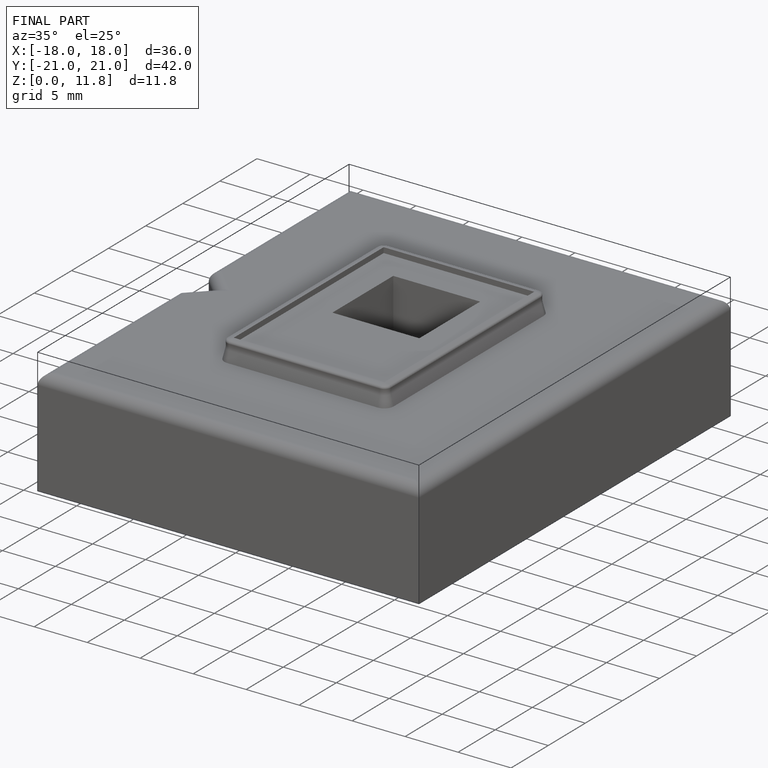
[diagram: finished part — iso view with bounding-box wireframe]
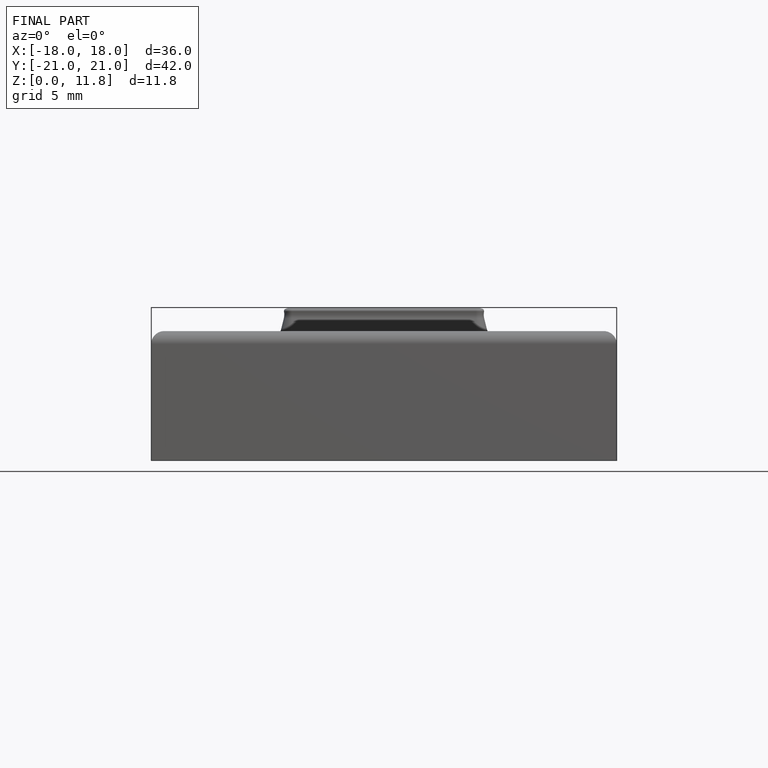
[diagram: finished part — front view with bounding-box wireframe]
